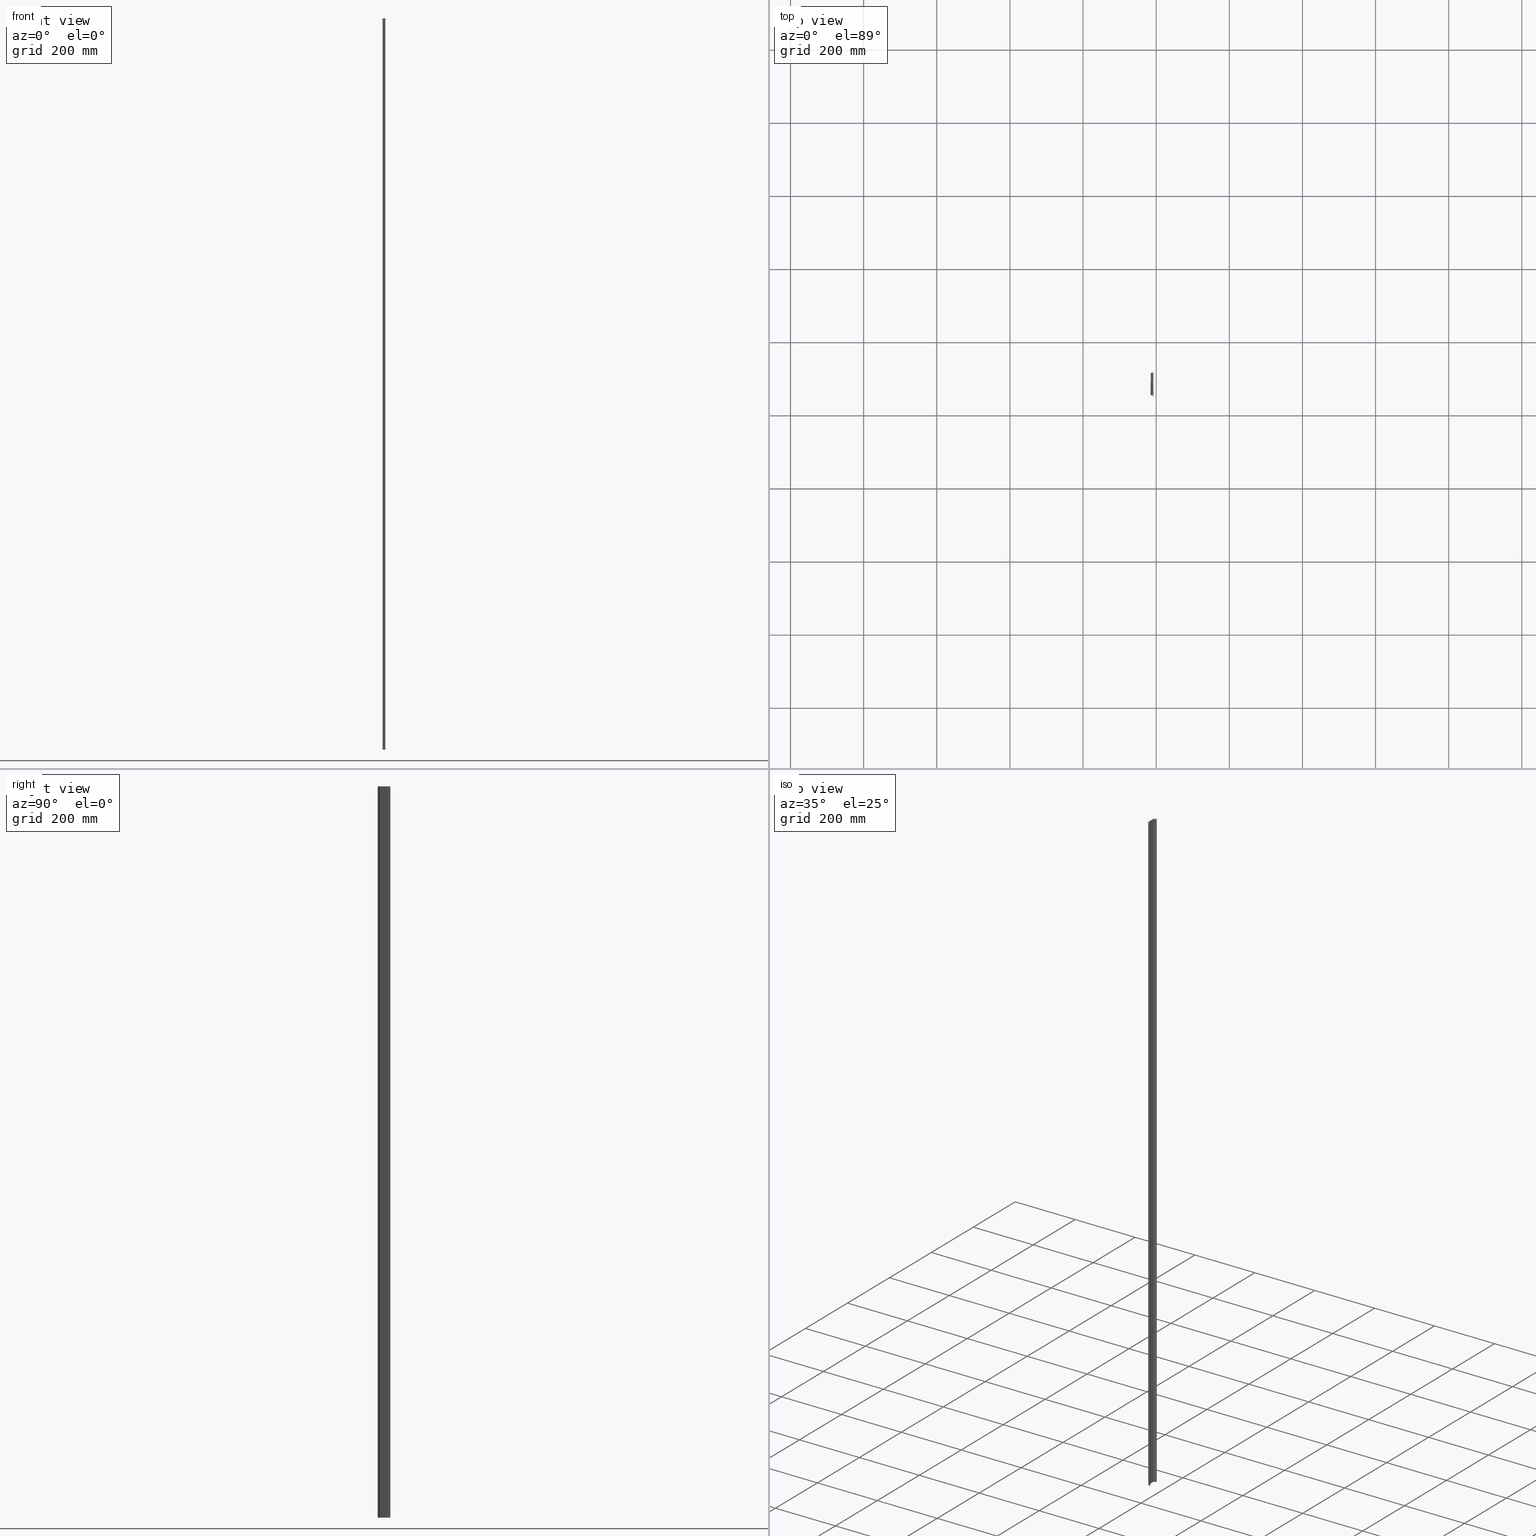
[diagram: canonical four-view strip — front | top / right | iso, engineering-drawing reading convention]
A machine part, canonical four-view strip (front | top / right | iso — engineering-drawing reading convention). The complete STEP part file that produces these views, byte-faithful:
ISO-10303-21;
HEADER;
FILE_DESCRIPTION (( 'STEP AP203' ),
    '1' );
FILE_NAME ('35x7,5 Galvaniz Kapl� D�z Montaj Raylar� - 2 m.STEP',
    '2019-01-03T08:49:48',
    ( '' ),
    ( '' ),
    'SwSTEP 2.0',
    'SolidWorks 2011',
    '' );
FILE_SCHEMA (( 'CONFIG_CONTROL_DESIGN' ));
ENDSEC;

DATA;
#1 = PLANE ( 'NONE',  #370 ) ;
#2 = CARTESIAN_POINT ( 'NONE',  ( 1388.575919215657900, 481.7188036583252700, 0.0000000000000000000 ) ) ;
#3 = DIRECTION ( 'NONE',  ( -0.0000000000000000000, 0.0000000000000000000, 1.000000000000000000 ) ) ;
#4 = DIRECTION ( 'NONE',  ( -0.0000000000000000000, 0.0000000000000000000, 1.000000000000000000 ) ) ;
#5 = CARTESIAN_POINT ( 'NONE',  ( 1388.575919215657900, 441.1357542965276400, 2000.000000000000000 ) ) ;
#6 = DIRECTION ( 'NONE',  ( -0.0000000000000000000, 0.0000000000000000000, 1.000000000000000000 ) ) ;
#7 = PLANE ( 'NONE',  #363 ) ;
#8 = DIRECTION ( 'NONE',  ( 1.000000000000000000, 0.0000000000000000000, 0.0000000000000000000 ) ) ;
#9 = DIRECTION ( 'NONE',  ( -0.0000000000000000000, 0.0000000000000000000, -1.000000000000000000 ) ) ;
#10 = DIRECTION ( 'NONE',  ( 0.0000000000000000000, 0.0000000000000000000, 1.000000000000000000 ) ) ;
#11 = DIRECTION ( 'NONE',  ( 1.000000000000000000, 0.0000000000000000000, 0.0000000000000000000 ) ) ;
#12 = FACE_OUTER_BOUND ( 'NONE', #203, .T. ) ;
#13 = CARTESIAN_POINT ( 'NONE',  ( 1386.625919215658100, 480.9188036583253200, 2000.000000000000000 ) ) ;
#14 = DIRECTION ( 'NONE',  ( 1.000000000000000000, 0.0000000000000000000, 0.0000000000000000000 ) ) ;
#15 = DIRECTION ( 'NONE',  ( -0.0000000000000000000, 0.0000000000000000000, -1.000000000000000000 ) ) ;
#16 = LINE ( 'NONE', #37, #276 ) ;
#17 = CARTESIAN_POINT ( 'NONE',  ( 1388.575919215659000, 482.7188036583252700, 2000.000000000000000 ) ) ;
#18 = CARTESIAN_POINT ( 'NONE',  ( 1388.575919215657900, 481.7188036583252700, 2000.000000000000000 ) ) ;
#19 = DIRECTION ( 'NONE',  ( 0.0000000000000000000, -1.000000000000000000, 0.0000000000000000000 ) ) ;
#20 = DIRECTION ( 'NONE',  ( -0.0000000000000000000, 0.0000000000000000000, 1.000000000000000000 ) ) ;
#21 = DIRECTION ( 'NONE',  ( 0.0000000000000000000, -0.0000000000000000000, -1.000000000000000000 ) ) ;
#22 = FACE_OUTER_BOUND ( 'NONE', #207, .T. ) ;
#23 = FACE_OUTER_BOUND ( 'NONE', #188, .T. ) ;
#24 = FACE_OUTER_BOUND ( 'NONE', #194, .T. ) ;
#25 = DIRECTION ( 'NONE',  ( -2.467162276944699000E-014, -1.000000000000000000, 0.0000000000000000000 ) ) ;
#26 = DIRECTION ( 'NONE',  ( -0.0000000000000000000, 0.0000000000000000000, 1.000000000000000000 ) ) ;
#27 = DIRECTION ( 'NONE',  ( -0.0000000000000000000, -0.0000000000000000000, -1.000000000000000000 ) ) ;
#28 = DIRECTION ( 'NONE',  ( 0.0000000000000000000, 0.0000000000000000000, 1.000000000000000000 ) ) ;
#29 = PLANE ( 'NONE',  #272 ) ;
#30 = CARTESIAN_POINT ( 'NONE',  ( 1388.575919215657900, 451.6188036583252500, 2000.000000000000000 ) ) ;
#31 = LINE ( 'NONE', #32, #315 ) ;
#32 = CARTESIAN_POINT ( 'NONE',  ( 1391.325919215657900, 486.6188036583252500, 2000.000000000000000 ) ) ;
#33 = LINE ( 'NONE', #44, #303 ) ;
#34 = CARTESIAN_POINT ( 'NONE',  ( 1386.625919215657900, 457.3188036583253500, 2000.000000000000000 ) ) ;
#35 = DIRECTION ( 'NONE',  ( 1.000000000000000000, -2.467162276944699000E-014, 0.0000000000000000000 ) ) ;
#36 = DIRECTION ( 'NONE',  ( 0.0000000000000000000, -0.0000000000000000000, -1.000000000000000000 ) ) ;
#37 = CARTESIAN_POINT ( 'NONE',  ( 1391.325919215657900, 483.5188036583252300, 2000.000000000000000 ) ) ;
#38 = DIRECTION ( 'NONE',  ( 1.000000000000000000, 0.0000000000000000000, -0.0000000000000000000 ) ) ;
#39 = DIRECTION ( 'NONE',  ( 0.0000000000000000000, -1.000000000000000000, 0.0000000000000000000 ) ) ;
#40 = DIRECTION ( 'NONE',  ( 0.0000000000000000000, 0.0000000000000000000, 1.000000000000000000 ) ) ;
#41 = FACE_OUTER_BOUND ( 'NONE', #192, .T. ) ;
#42 = DIRECTION ( 'NONE',  ( 1.000000000000000000, 0.0000000000000000000, 0.0000000000000000000 ) ) ;
#43 = DIRECTION ( 'NONE',  ( 0.0000000000000000000, -1.000000000000000000, 0.0000000000000000000 ) ) ;
#44 = CARTESIAN_POINT ( 'NONE',  ( 1388.575919215657900, 486.6188036583252500, 2000.000000000000000 ) ) ;
#45 = CARTESIAN_POINT ( 'NONE',  ( 1386.625919215657900, 481.7188036583252700, 0.0000000000000000000 ) ) ;
#46 = FACE_OUTER_BOUND ( 'NONE', #193, .T. ) ;
#47 = PLANE ( 'NONE',  #287 ) ;
#48 = CARTESIAN_POINT ( 'NONE',  ( 1390.525919215657700, 454.7188036583252700, 2000.000000000000000 ) ) ;
#49 = CARTESIAN_POINT ( 'NONE',  ( 1391.325919215657900, 441.1357542965276400, 2000.000000000000000 ) ) ;
#50 = PLANE ( 'NONE',  #311 ) ;
#51 = PLANE ( 'NONE',  #314 ) ;
#52 = DIRECTION ( 'NONE',  ( -0.0000000000000000000, 0.0000000000000000000, -1.000000000000000000 ) ) ;
#53 = CARTESIAN_POINT ( 'NONE',  ( 1385.825919215657900, 441.1357542965276400, 2000.000000000000000 ) ) ;
#54 = CARTESIAN_POINT ( 'NONE',  ( 1391.325919215657900, 441.1357542965276400, 0.0000000000000000000 ) ) ;
#55 = DIRECTION ( 'NONE',  ( 1.000000000000000000, 0.0000000000000000000, 0.0000000000000000000 ) ) ;
#56 = LINE ( 'NONE', #54, #283 ) ;
#57 = DIRECTION ( 'NONE',  ( 1.000000000000000000, 0.0000000000000000000, -0.0000000000000000000 ) ) ;
#58 = LINE ( 'NONE', #45, #312 ) ;
#59 = DIRECTION ( 'NONE',  ( -0.0000000000000000000, -0.0000000000000000000, -1.000000000000000000 ) ) ;
#60 = CYLINDRICAL_SURFACE ( 'NONE', #319, 0.7999999999999118900 ) ;
#61 = DIRECTION ( 'NONE',  ( 0.0000000000000000000, -0.0000000000000000000, -1.000000000000000000 ) ) ;
#62 = DIRECTION ( 'NONE',  ( 1.000000000000000000, 0.0000000000000000000, 0.0000000000000000000 ) ) ;
#63 = LINE ( 'NONE', #82, #313 ) ;
#64 = LINE ( 'NONE', #84, #316 ) ;
#65 = DIRECTION ( 'NONE',  ( 0.0000000000000000000, 0.0000000000000000000, 1.000000000000000000 ) ) ;
#66 = LINE ( 'NONE', #80, #293 ) ;
#67 = DIRECTION ( 'NONE',  ( -1.000000000000000000, 0.0000000000000000000, 0.0000000000000000000 ) ) ;
#68 = DIRECTION ( 'NONE',  ( -0.0000000000000000000, -0.0000000000000000000, 1.000000000000000000 ) ) ;
#69 = CYLINDRICAL_SURFACE ( 'NONE', #285, 0.7999999999999118900 ) ;
#70 = CARTESIAN_POINT ( 'NONE',  ( 1390.525919215658000, 483.5188036583252300, 2000.000000000000000 ) ) ;
#71 = DIRECTION ( 'NONE',  ( -1.000000000000000000, 0.0000000000000000000, 0.0000000000000000000 ) ) ;
#72 = LINE ( 'NONE', #516, #295 ) ;
#73 = DIRECTION ( 'NONE',  ( 0.0000000000000000000, -1.000000000000000000, 0.0000000000000000000 ) ) ;
#74 = LINE ( 'NONE', #76, #279 ) ;
#75 = LINE ( 'NONE', #83, #298 ) ;
#76 = CARTESIAN_POINT ( 'NONE',  ( 1392.325919215657900, 451.6188036583252500, 2000.000000000000000 ) ) ;
#77 = LINE ( 'NONE', #506, #306 ) ;
#78 = DIRECTION ( 'NONE',  ( 1.000000000000000000, 0.0000000000000000000, 0.0000000000000000000 ) ) ;
#79 = FACE_OUTER_BOUND ( 'NONE', #205, .T. ) ;
#80 = CARTESIAN_POINT ( 'NONE',  ( 1384.825919215657900, 441.1357542965276400, 2000.000000000000000 ) ) ;
#81 = DIRECTION ( 'NONE',  ( -0.0000000000000000000, -0.0000000000000000000, -1.000000000000000000 ) ) ;
#82 = CARTESIAN_POINT ( 'NONE',  ( 1392.325919215657900, 441.1357542965276400, 0.0000000000000000000 ) ) ;
#83 = CARTESIAN_POINT ( 'NONE',  ( 1386.625919215657900, 456.5188036583253400, 2000.000000000000000 ) ) ;
#84 = CARTESIAN_POINT ( 'NONE',  ( 1392.325919215657900, 454.7188036583252700, 2000.000000000000000 ) ) ;
#85 = CARTESIAN_POINT ( 'NONE',  ( 1390.525919215658000, 454.7188036583252100, 2000.000000000000000 ) ) ;
#86 = LINE ( 'NONE', #91, #292 ) ;
#87 = DIRECTION ( 'NONE',  ( 0.0000000000000000000, -1.000000000000000000, 0.0000000000000000000 ) ) ;
#88 = LINE ( 'NONE', #89, #294 ) ;
#89 = CARTESIAN_POINT ( 'NONE',  ( 1388.575919215657900, 486.6188036583252500, 0.0000000000000000000 ) ) ;
#90 = DIRECTION ( 'NONE',  ( 0.0000000000000000000, 0.0000000000000000000, 1.000000000000000000 ) ) ;
#91 = CARTESIAN_POINT ( 'NONE',  ( 1384.825919215657900, 441.1357542965276400, 0.0000000000000000000 ) ) ;
#92 = DESIGN_CONTEXT ( 'detailed design', #388, 'design' ) ;
#93 = UNCERTAINTY_MEASURE_WITH_UNIT (LENGTH_MEASURE( 1.000000000000000100E-005 ), #528, 'distance_accuracy_value', 'NONE');
#94 = MANIFOLD_SOLID_BREP ( 'Radyus4', #332 ) ;
#95 = PRODUCT_DEFINITION_SHAPE ( 'NONE', 'NONE',  #449 ) ;
#96 = ORIENTED_EDGE ( 'NONE', *, *, #414, .F. ) ;
#97 = ORIENTED_EDGE ( 'NONE', *, *, #420, .T. ) ;
#98 = ORIENTED_EDGE ( 'NONE', *, *, #477, .F. ) ;
#99 = ORIENTED_EDGE ( 'NONE', *, *, #407, .T. ) ;
#100 = ORIENTED_EDGE ( 'NONE', *, *, #417, .F. ) ;
#101 = ORIENTED_EDGE ( 'NONE', *, *, #405, .F. ) ;
#102 = ORIENTED_EDGE ( 'NONE', *, *, #406, .F. ) ;
#103 = ORIENTED_EDGE ( 'NONE', *, *, #421, .F. ) ;
#104 = ORIENTED_EDGE ( 'NONE', *, *, #437, .F. ) ;
#105 = ORIENTED_EDGE ( 'NONE', *, *, #412, .T. ) ;
#106 = ORIENTED_EDGE ( 'NONE', *, *, #414, .T. ) ;
#107 = ORIENTED_EDGE ( 'NONE', *, *, #475, .F. ) ;
#108 = ORIENTED_EDGE ( 'NONE', *, *, #462, .F. ) ;
#109 = ORIENTED_EDGE ( 'NONE', *, *, #458, .T. ) ;
#110 = ORIENTED_EDGE ( 'NONE', *, *, #419, .T. ) ;
#111 = ORIENTED_EDGE ( 'NONE', *, *, #440, .T. ) ;
#112 = ORIENTED_EDGE ( 'NONE', *, *, #407, .F. ) ;
#113 = ORIENTED_EDGE ( 'NONE', *, *, #397, .T. ) ;
#114 = ORIENTED_EDGE ( 'NONE', *, *, #399, .T. ) ;
#115 = ORIENTED_EDGE ( 'NONE', *, *, #433, .F. ) ;
#116 = ORIENTED_EDGE ( 'NONE', *, *, #438, .T. ) ;
#117 = ORIENTED_EDGE ( 'NONE', *, *, #482, .F. ) ;
#118 = ORIENTED_EDGE ( 'NONE', *, *, #396, .F. ) ;
#119 = ORIENTED_EDGE ( 'NONE', *, *, #412, .F. ) ;
#120 = ORIENTED_EDGE ( 'NONE', *, *, #408, .T. ) ;
#121 = ORIENTED_EDGE ( 'NONE', *, *, #438, .F. ) ;
#122 = ORIENTED_EDGE ( 'NONE', *, *, #401, .F. ) ;
#123 = ORIENTED_EDGE ( 'NONE', *, *, #404, .T. ) ;
#124 = ORIENTED_EDGE ( 'NONE', *, *, #476, .F. ) ;
#125 = ORIENTED_EDGE ( 'NONE', *, *, #485, .F. ) ;
#126 = ORIENTED_EDGE ( 'NONE', *, *, #468, .F. ) ;
#127 = ORIENTED_EDGE ( 'NONE', *, *, #469, .T. ) ;
#128 = ORIENTED_EDGE ( 'NONE', *, *, #471, .T. ) ;
#129 = ORIENTED_EDGE ( 'NONE', *, *, #443, .T. ) ;
#130 = ORIENTED_EDGE ( 'NONE', *, *, #437, .T. ) ;
#131 = ORIENTED_EDGE ( 'NONE', *, *, #415, .T. ) ;
#132 = ORIENTED_EDGE ( 'NONE', *, *, #442, .F. ) ;
#133 = ORIENTED_EDGE ( 'NONE', *, *, #479, .F. ) ;
#134 = VERTEX_POINT ( 'NONE', #630 ) ;
#135 = VERTEX_POINT ( 'NONE', #624 ) ;
#136 = ORIENTED_EDGE ( 'NONE', *, *, #398, .F. ) ;
#137 = VERTEX_POINT ( 'NONE', #616 ) ;
#138 = VERTEX_POINT ( 'NONE', #610 ) ;
#139 = VERTEX_POINT ( 'NONE', #626 ) ;
#140 = VERTEX_POINT ( 'NONE', #627 ) ;
#141 = VERTEX_POINT ( 'NONE', #636 ) ;
#142 = VERTEX_POINT ( 'NONE', #635 ) ;
#143 = VERTEX_POINT ( 'NONE', #611 ) ;
#144 = VERTEX_POINT ( 'NONE', #628 ) ;
#145 = VERTEX_POINT ( 'NONE', #612 ) ;
#146 = VERTEX_POINT ( 'NONE', #629 ) ;
#147 = VERTEX_POINT ( 'NONE', #631 ) ;
#148 = VERTEX_POINT ( 'NONE', #634 ) ;
#149 = VERTEX_POINT ( 'NONE', #618 ) ;
#150 = ORIENTED_EDGE ( 'NONE', *, *, #408, .F. ) ;
#151 = ORIENTED_EDGE ( 'NONE', *, *, #474, .F. ) ;
#152 = VERTEX_POINT ( 'NONE', #619 ) ;
#153 = ORIENTED_EDGE ( 'NONE', *, *, #463, .T. ) ;
#154 = VERTEX_POINT ( 'NONE', #613 ) ;
#155 = VERTEX_POINT ( 'NONE', #614 ) ;
#156 = ORIENTED_EDGE ( 'NONE', *, *, #413, .F. ) ;
#157 = VERTEX_POINT ( 'NONE', #608 ) ;
#158 = VERTEX_POINT ( 'NONE', #617 ) ;
#159 = ORIENTED_EDGE ( 'NONE', *, *, #483, .F. ) ;
#160 = ORIENTED_EDGE ( 'NONE', *, *, #392, .F. ) ;
#161 = VERTEX_POINT ( 'NONE', #637 ) ;
#162 = ORIENTED_EDGE ( 'NONE', *, *, #397, .F. ) ;
#163 = VERTEX_POINT ( 'NONE', #615 ) ;
#164 = ORIENTED_EDGE ( 'NONE', *, *, #417, .T. ) ;
#165 = ORIENTED_EDGE ( 'NONE', *, *, #467, .F. ) ;
#166 = VERTEX_POINT ( 'NONE', #609 ) ;
#167 = VERTEX_POINT ( 'NONE', #680 ) ;
#168 = VERTEX_POINT ( 'NONE', #650 ) ;
#169 = VERTEX_POINT ( 'NONE', #669 ) ;
#170 = VERTEX_POINT ( 'NONE', #658 ) ;
#171 = VERTEX_POINT ( 'NONE', #670 ) ;
#172 = ORIENTED_EDGE ( 'NONE', *, *, #480, .F. ) ;
#173 = ORIENTED_EDGE ( 'NONE', *, *, #421, .T. ) ;
#174 = ORIENTED_EDGE ( 'NONE', *, *, #442, .T. ) ;
#175 = VERTEX_POINT ( 'NONE', #642 ) ;
#176 = VERTEX_POINT ( 'NONE', #659 ) ;
#177 = VERTEX_POINT ( 'NONE', #668 ) ;
#178 = VERTEX_POINT ( 'NONE', #652 ) ;
#179 = VERTEX_POINT ( 'NONE', #647 ) ;
#180 = ORIENTED_EDGE ( 'NONE', *, *, #415, .F. ) ;
#181 = ORIENTED_EDGE ( 'NONE', *, *, #411, .F. ) ;
#182 = ORIENTED_EDGE ( 'NONE', *, *, #466, .T. ) ;
#183 = ORIENTED_EDGE ( 'NONE', *, *, #432, .F. ) ;
#184 = ORIENTED_EDGE ( 'NONE', *, *, #427, .F. ) ;
#185 = ORIENTED_EDGE ( 'NONE', *, *, #470, .F. ) ;
#186 = EDGE_LOOP ( 'NONE', ( #150, #159, #132, #183 ) ) ;
#187 = EDGE_LOOP ( 'NONE', ( #248, #218, #210, #211 ) ) ;
#188 = EDGE_LOOP ( 'NONE', ( #231, #251, #228, #111 ) ) ;
#189 = EDGE_LOOP ( 'NONE', ( #242, #227, #234, #226 ) ) ;
#190 = EDGE_LOOP ( 'NONE', ( #216, #233, #241, #236 ) ) ;
#191 = EDGE_LOOP ( 'NONE', ( #100, #125, #112, #107 ) ) ;
#192 = EDGE_LOOP ( 'NONE', ( #239, #212, #217, #246 ) ) ;
#193 = EDGE_LOOP ( 'NONE', ( #213, #208, #215, #214 ) ) ;
#194 = EDGE_LOOP ( 'NONE', ( #225, #219, #247, #209 ) ) ;
#195 = EDGE_LOOP ( 'NONE', ( #103, #269, #119, #102 ) ) ;
#196 = EDGE_LOOP ( 'NONE', ( #121, #108, #96, #98 ) ) ;
#197 = EDGE_LOOP ( 'NONE', ( #245, #256, #240, #229 ) ) ;
#198 = EDGE_LOOP ( 'NONE', ( #244, #232, #249, #255 ) ) ;
#199 = EDGE_LOOP ( 'NONE', ( #238, #230, #224, #221 ) ) ;
#200 = EDGE_LOOP ( 'NONE', ( #180, #160, #136, #184 ) ) ;
#201 = EDGE_LOOP ( 'NONE', ( #262, #106, #109, #264, #259, #113, #182, #99, #257, #123, #172, #120, #115, #220, #114, #266, #97, #173, #265, #110 ) ) ;
#202 = EDGE_LOOP ( 'NONE', ( #252, #222, #254, #237 ) ) ;
#203 = EDGE_LOOP ( 'NONE', ( #260, #267, #118, #263 ) ) ;
#204 = EDGE_LOOP ( 'NONE', ( #104, #181, #261, #124 ) ) ;
#205 = EDGE_LOOP ( 'NONE', ( #162, #165, #156, #133 ) ) ;
#206 = EDGE_LOOP ( 'NONE', ( #151, #116, #128, #258, #185, #105, #122, #131, #101, #129, #270, #174, #127, #130, #153, #164, #126, #223, #268, #117 ) ) ;
#207 = EDGE_LOOP ( 'NONE', ( #243, #250, #253, #235 ) ) ;
#208 = ORIENTED_EDGE ( 'NONE', *, *, #483, .T. ) ;
#209 = ORIENTED_EDGE ( 'NONE', *, *, #434, .T. ) ;
#210 = ORIENTED_EDGE ( 'NONE', *, *, #399, .F. ) ;
#211 = ORIENTED_EDGE ( 'NONE', *, *, #428, .F. ) ;
#212 = ORIENTED_EDGE ( 'NONE', *, *, #472, .T. ) ;
#213 = ORIENTED_EDGE ( 'NONE', *, *, #469, .F. ) ;
#214 = ORIENTED_EDGE ( 'NONE', *, *, #411, .T. ) ;
#215 = ORIENTED_EDGE ( 'NONE', *, *, #480, .T. ) ;
#216 = ORIENTED_EDGE ( 'NONE', *, *, #463, .F. ) ;
#217 = ORIENTED_EDGE ( 'NONE', *, *, #473, .F. ) ;
#218 = ORIENTED_EDGE ( 'NONE', *, *, #427, .T. ) ;
#219 = ORIENTED_EDGE ( 'NONE', *, *, #392, .T. ) ;
#220 = ORIENTED_EDGE ( 'NONE', *, *, #445, .F. ) ;
#221 = ORIENTED_EDGE ( 'NONE', *, *, #461, .T. ) ;
#222 = ORIENTED_EDGE ( 'NONE', *, *, #479, .T. ) ;
#223 = ORIENTED_EDGE ( 'NONE', *, *, #413, .T. ) ;
#224 = ORIENTED_EDGE ( 'NONE', *, *, #474, .T. ) ;
#225 = ORIENTED_EDGE ( 'NONE', *, *, #420, .F. ) ;
#226 = ORIENTED_EDGE ( 'NONE', *, *, #428, .T. ) ;
#227 = ORIENTED_EDGE ( 'NONE', *, *, #440, .F. ) ;
#228 = ORIENTED_EDGE ( 'NONE', *, *, #425, .F. ) ;
#229 = ORIENTED_EDGE ( 'NONE', *, *, #459, .T. ) ;
#230 = ORIENTED_EDGE ( 'NONE', *, *, #462, .T. ) ;
#231 = ORIENTED_EDGE ( 'NONE', *, *, #433, .T. ) ;
#232 = ORIENTED_EDGE ( 'NONE', *, *, #467, .T. ) ;
#233 = ORIENTED_EDGE ( 'NONE', *, *, #476, .T. ) ;
#234 = ORIENTED_EDGE ( 'NONE', *, *, #443, .F. ) ;
#235 = ORIENTED_EDGE ( 'NONE', *, *, #465, .T. ) ;
#236 = ORIENTED_EDGE ( 'NONE', *, *, #485, .T. ) ;
#237 = ORIENTED_EDGE ( 'NONE', *, *, #475, .T. ) ;
#238 = ORIENTED_EDGE ( 'NONE', *, *, #458, .F. ) ;
#239 = ORIENTED_EDGE ( 'NONE', *, *, #470, .T. ) ;
#240 = ORIENTED_EDGE ( 'NONE', *, *, #484, .T. ) ;
#241 = ORIENTED_EDGE ( 'NONE', *, *, #460, .T. ) ;
#242 = ORIENTED_EDGE ( 'NONE', *, *, #445, .T. ) ;
#243 = ORIENTED_EDGE ( 'NONE', *, *, #478, .F. ) ;
#244 = ORIENTED_EDGE ( 'NONE', *, *, #481, .F. ) ;
#245 = ORIENTED_EDGE ( 'NONE', *, *, #471, .F. ) ;
#246 = ORIENTED_EDGE ( 'NONE', *, *, #406, .T. ) ;
#247 = ORIENTED_EDGE ( 'NONE', *, *, #401, .T. ) ;
#248 = ORIENTED_EDGE ( 'NONE', *, *, #405, .T. ) ;
#249 = ORIENTED_EDGE ( 'NONE', *, *, #464, .T. ) ;
#250 = ORIENTED_EDGE ( 'NONE', *, *, #461, .F. ) ;
#251 = ORIENTED_EDGE ( 'NONE', *, *, #432, .T. ) ;
#252 = ORIENTED_EDGE ( 'NONE', *, *, #466, .F. ) ;
#253 = ORIENTED_EDGE ( 'NONE', *, *, #482, .T. ) ;
#254 = ORIENTED_EDGE ( 'NONE', *, *, #468, .T. ) ;
#255 = ORIENTED_EDGE ( 'NONE', *, *, #465, .F. ) ;
#256 = ORIENTED_EDGE ( 'NONE', *, *, #477, .T. ) ;
#257 = ORIENTED_EDGE ( 'NONE', *, *, #460, .F. ) ;
#258 = ORIENTED_EDGE ( 'NONE', *, *, #396, .T. ) ;
#259 = ORIENTED_EDGE ( 'NONE', *, *, #464, .F. ) ;
#260 = ORIENTED_EDGE ( 'NONE', *, *, #419, .F. ) ;
#261 = ORIENTED_EDGE ( 'NONE', *, *, #404, .F. ) ;
#262 = ORIENTED_EDGE ( 'NONE', *, *, #484, .F. ) ;
#263 = ORIENTED_EDGE ( 'NONE', *, *, #459, .F. ) ;
#264 = ORIENTED_EDGE ( 'NONE', *, *, #478, .T. ) ;
#265 = ORIENTED_EDGE ( 'NONE', *, *, #473, .T. ) ;
#266 = ORIENTED_EDGE ( 'NONE', *, *, #398, .T. ) ;
#267 = ORIENTED_EDGE ( 'NONE', *, *, #472, .F. ) ;
#268 = ORIENTED_EDGE ( 'NONE', *, *, #481, .T. ) ;
#269 = ORIENTED_EDGE ( 'NONE', *, *, #434, .F. ) ;
#270 = ORIENTED_EDGE ( 'NONE', *, *, #425, .T. ) ;
#271 = VECTOR ( 'NONE', #517, 1000.000000000000000 ) ;
#272 = AXIS2_PLACEMENT_3D ( 'NONE', #17, #25, #35 ) ;
#273 = VECTOR ( 'NONE', #524, 1000.000000000000000 ) ;
#274 = VECTOR ( 'NONE', #567, 1000.000000000000000 ) ;
#275 = VECTOR ( 'NONE', #535, 1000.000000000000000 ) ;
#276 = VECTOR ( 'NONE', #28, 1000.000000000000000 ) ;
#277 = AXIS2_PLACEMENT_3D ( 'NONE', #13, #26, #42 ) ;
#278 = VECTOR ( 'NONE', #505, 1000.000000000000000 ) ;
#279 = VECTOR ( 'NONE', #81, 1000.000000000000000 ) ;
#280 = VECTOR ( 'NONE', #511, 1000.000000000000000 ) ;
#281 = AXIS2_PLACEMENT_3D ( 'NONE', #770, #773, #744 ) ;
#282 = VECTOR ( 'NONE', #774, 1000.000000000000000 ) ;
#283 = VECTOR ( 'NONE', #39, 1000.000000000000000 ) ;
#284 = VECTOR ( 'NONE', #564, 1000.000000000000000 ) ;
#285 = AXIS2_PLACEMENT_3D ( 'NONE', #85, #65, #62 ) ;
#286 = VECTOR ( 'NONE', #559, 1000.000000000000000 ) ;
#287 = AXIS2_PLACEMENT_3D ( 'NONE', #49, #38, #15 ) ;
#288 = VECTOR ( 'NONE', #550, 1000.000000000000000 ) ;
#289 = CIRCLE ( 'NONE', #310, 1.800000000000023800 ) ;
#290 = VECTOR ( 'NONE', #493, 1000.000000000000000 ) ;
#291 = VECTOR ( 'NONE', #520, 1000.000000000000000 ) ;
#292 = VECTOR ( 'NONE', #87, 1000.000000000000000 ) ;
#293 = VECTOR ( 'NONE', #503, 1000.000000000000000 ) ;
#294 = VECTOR ( 'NONE', #67, 1000.000000000000000 ) ;
#295 = VECTOR ( 'NONE', #521, 1000.000000000000000 ) ;
#296 = VECTOR ( 'NONE', #497, 1000.000000000000000 ) ;
#297 = VECTOR ( 'NONE', #537, 1000.000000000000000 ) ;
#298 = VECTOR ( 'NONE', #90, 1000.000000000000000 ) ;
#299 = VECTOR ( 'NONE', #488, 1000.000000000000000 ) ;
#300 = VECTOR ( 'NONE', #495, 1000.000000000000000 ) ;
#301 = AXIS2_PLACEMENT_3D ( 'NONE', #558, #530, #531 ) ;
#302 = AXIS2_PLACEMENT_3D ( 'NONE', #780, #776, #779 ) ;
#303 = VECTOR ( 'NONE', #71, 1000.000000000000000 ) ;
#304 = VECTOR ( 'NONE', #751, 1000.000000000000000 ) ;
#305 = AXIS2_PLACEMENT_3D ( 'NONE', #70, #61, #78 ) ;
#306 = VECTOR ( 'NONE', #502, 1000.000000000000000 ) ;
#307 = VECTOR ( 'NONE', #512, 1000.000000000000000 ) ;
#308 = VECTOR ( 'NONE', #509, 1000.000000000000000 ) ;
#309 = AXIS2_PLACEMENT_3D ( 'NONE', #771, #762, #11 ) ;
#310 = AXIS2_PLACEMENT_3D ( 'NONE', #48, #20, #55 ) ;
#311 = AXIS2_PLACEMENT_3D ( 'NONE', #18, #19, #36 ) ;
#312 = VECTOR ( 'NONE', #27, 1000.000000000000000 ) ;
#313 = VECTOR ( 'NONE', #73, 1000.000000000000000 ) ;
#314 = AXIS2_PLACEMENT_3D ( 'NONE', #30, #43, #21 ) ;
#315 = VECTOR ( 'NONE', #59, 1000.000000000000000 ) ;
#316 = VECTOR ( 'NONE', #68, 1000.000000000000000 ) ;
#317 = VECTOR ( 'NONE', #514, 1000.000000000000000 ) ;
#318 = VECTOR ( 'NONE', #570, 1000.000000000000000 ) ;
#319 = AXIS2_PLACEMENT_3D ( 'NONE', #34, #40, #14 ) ;
#320 = CIRCLE ( 'NONE', #305, 0.7999999999999118900 ) ;
#321 = AXIS2_PLACEMENT_3D ( 'NONE', #53, #57, #52 ) ;
#322 = VECTOR ( 'NONE', #548, 1000.000000000000000 ) ;
#323 = CIRCLE ( 'NONE', #277, 1.800000000000023800 ) ;
#324 = VECTOR ( 'NONE', #730, 1000.000000000000000 ) ;
#325 = CIRCLE ( 'NONE', #343, 0.7999999999999118900 ) ;
#326 = VECTOR ( 'NONE', #643, 1000.000000000000000 ) ;
#327 = CIRCLE ( 'NONE', #347, 1.800000000000023800 ) ;
#328 = AXIS2_PLACEMENT_3D ( 'NONE', #666, #681, #646 ) ;
#329 = CIRCLE ( 'NONE', #342, 1.800000000000023800 ) ;
#330 = VECTOR ( 'NONE', #699, 1000.000000000000000 ) ;
#331 = CIRCLE ( 'NONE', #348, 1.800000000000023800 ) ;
#332 = CLOSED_SHELL ( 'NONE', ( #435, #423, #426, #403, #439, #416, #429, #430, #431, #402, #400, #436, #422, #409, #441, #393, #395, #424, #418, #394, #444, #410 ) ) ;
#333 = VECTOR ( 'NONE', #714, 1000.000000000000000 ) ;
#334 = AXIS2_PLACEMENT_3D ( 'NONE', #638, #660, #679 ) ;
#335 = CIRCLE ( 'NONE', #340, 0.7999999999999118900 ) ;
#336 = AXIS2_PLACEMENT_3D ( 'NONE', #696, #689, #690 ) ;
#337 = AXIS2_PLACEMENT_3D ( 'NONE', #701, #721, #736 ) ;
#338 = VECTOR ( 'NONE', #655, 1000.000000000000000 ) ;
#339 = AXIS2_PLACEMENT_3D ( 'NONE', #667, #685, #676 ) ;
#340 = AXIS2_PLACEMENT_3D ( 'NONE', #662, #664, #648 ) ;
#341 = CIRCLE ( 'NONE', #344, 0.7999999999999118900 ) ;
#342 = AXIS2_PLACEMENT_3D ( 'NONE', #704, #719, #738 ) ;
#343 = AXIS2_PLACEMENT_3D ( 'NONE', #713, #720, #710 ) ;
#344 = AXIS2_PLACEMENT_3D ( 'NONE', #682, #672, #639 ) ;
#345 = AXIS2_PLACEMENT_3D ( 'NONE', #727, #743, #734 ) ;
#346 = CIRCLE ( 'NONE', #354, 1.800000000000023800 ) ;
#347 = AXIS2_PLACEMENT_3D ( 'NONE', #663, #641, #671 ) ;
#348 = AXIS2_PLACEMENT_3D ( 'NONE', #694, #695, #739 ) ;
#349 = CIRCLE ( 'NONE', #351, 0.7999999999999118900 ) ;
#350 = VECTOR ( 'NONE', #722, 1000.000000000000000 ) ;
#351 = AXIS2_PLACEMENT_3D ( 'NONE', #702, #723, #726 ) ;
#352 = AXIS2_PLACEMENT_3D ( 'NONE', #705, #728, #729 ) ;
#353 = AXIS2_PLACEMENT_3D ( 'NONE', #687, #692, #688 ) ;
#354 = AXIS2_PLACEMENT_3D ( 'NONE', #742, #732, #715 ) ;
#355 = AXIS2_PLACEMENT_3D ( 'NONE', #665, #683, #677 ) ;
#356 = CIRCLE ( 'NONE', #352, 0.7999999999999118900 ) ;
#357 = CIRCLE ( 'NONE', #366, 1.800000000000023800 ) ;
#358 = CIRCLE ( 'NONE', #362, 1.800000000000023800 ) ;
#359 = VECTOR ( 'NONE', #756, 1000.000000000000000 ) ;
#360 = AXIS2_PLACEMENT_3D ( 'NONE', #749, #3, #757 ) ;
#361 = VECTOR ( 'NONE', #768, 1000.000000000000000 ) ;
#362 = AXIS2_PLACEMENT_3D ( 'NONE', #748, #6, #752 ) ;
#363 = AXIS2_PLACEMENT_3D ( 'NONE', #746, #758, #9 ) ;
#364 = CIRCLE ( 'NONE', #367, 0.7999999999999118900 ) ;
#365 = AXIS2_PLACEMENT_3D ( 'NONE', #718, #10, #755 ) ;
#366 = AXIS2_PLACEMENT_3D ( 'NONE', #709, #716, #733 ) ;
#367 = AXIS2_PLACEMENT_3D ( 'NONE', #765, #4, #766 ) ;
#368 =( GEOMETRIC_REPRESENTATION_CONTEXT ( 3 ) GLOBAL_UNCERTAINTY_ASSIGNED_CONTEXT ( ( #93 ) ) GLOBAL_UNIT_ASSIGNED_CONTEXT ( ( #528, #565, #549 ) ) REPRESENTATION_CONTEXT ( 'NONE', 'WORKASPACE' ) );
#369 = CIRCLE ( 'NONE', #360, 0.7999999999999118900 ) ;
#370 = AXIS2_PLACEMENT_3D ( 'NONE', #5, #759, #8 ) ;
#371 = AXIS2_PLACEMENT_3D ( 'NONE', #703, #708, #712 ) ;
#372 = CC_DESIGN_APPROVAL ( #446, ( #449 ) ) ;
#373 = LOCAL_TIME ( 11, 49, 48.00000000000000000, #576 ) ;
#374 = SECURITY_CLASSIFICATION ( '', '', #595 ) ;
#375 = LOCAL_TIME ( 11, 49, 48.00000000000000000, #580 ) ;
#376 = CC_DESIGN_APPROVAL ( #452, ( #374 ) ) ;
#377 = LOCAL_TIME ( 11, 49, 48.00000000000000000, #543 ) ;
#378 = LOCAL_TIME ( 11, 49, 48.00000000000000000, #577 ) ;
#379 = PRODUCT_DEFINITION_FORMATION_WITH_SPECIFIED_SOURCE ( '     Herhangi', '', #387, .NOT_KNOWN. ) ;
#380 = CC_DESIGN_SECURITY_CLASSIFICATION ( #374, ( #379 ) ) ;
#381 = LOCAL_TIME ( 11, 49, 48.00000000000000000, #575 ) ;
#382 = ORGANIZATION ( 'BEL�RT�LMEM��', 'BEL�RT�LMEM��', '' ) ;
#383 = APPROVAL_PERSON_ORGANIZATION ( #584, #453, #598 ) ;
#384 = APPROVAL_PERSON_ORGANIZATION ( #539, #446, #542 ) ;
#385 = APPROVAL_PERSON_ORGANIZATION ( #606, #452, #593 ) ;
#386 = CC_DESIGN_APPROVAL ( #453, ( #379 ) ) ;
#387 = PRODUCT ( '35x7,5 Galvaniz Kapl� D�z Montaj Raylar� - 2 m', '35x7,5 Galvaniz Kapl� D�z Montaj Raylar� - 2 m', '', ( #553 ) ) ;
#388 = APPLICATION_CONTEXT ( 'configuration controlled 3d designs of mechanical parts and assemblies' ) ;
#389 = APPLICATION_CONTEXT ( 'configuration controlled 3d designs of mechanical parts and assemblies' ) ;
#390 = ADVANCED_BREP_SHAPE_REPRESENTATION ( '35x7,5 Galvaniz Kapl� D�z Montaj Raylar� - 2 m', ( #94, #301 ), #368 ) ;
#391 = PERSON ( 'BEL�RT�LMEM��', 'BEL�RT�LMEM��', 'BEL�RT�LMEM��', ('BEL�RT�LMEM��'), ('BEL�RT�LMEM��'), ('BEL�RT�LMEM��') ) ;
#392 = EDGE_CURVE ( 'NONE', #166, #171, #673, .T. ) ;
#393 = ADVANCED_FACE ( 'NONE', ( #657 ), #649, .F. ) ;
#394 = ADVANCED_FACE ( 'NONE', ( #644 ), #684, .T. ) ;
#395 = ADVANCED_FACE ( 'NONE', ( #678 ), #651, .T. ) ;
#396 = EDGE_CURVE ( 'NONE', #152, #143, #335, .T. ) ;
#397 = EDGE_CURVE ( 'NONE', #149, #170, #341, .T. ) ;
#398 = EDGE_CURVE ( 'NONE', #633, #166, #327, .T. ) ;
#399 = EDGE_CURVE ( 'NONE', #178, #633, #661, .T. ) ;
#400 = ADVANCED_FACE ( 'NONE', ( #640 ), #645, .F. ) ;
#401 = EDGE_CURVE ( 'NONE', #171, #158, #656, .T. ) ;
#402 = ADVANCED_FACE ( 'NONE', ( #653 ), #697, .T. ) ;
#403 = ADVANCED_FACE ( 'NONE', ( #698 ), #674, .F. ) ;
#404 = EDGE_CURVE ( 'NONE', #179, #147, #331, .T. ) ;
#405 = EDGE_CURVE ( 'NONE', #620, #622, #691, .T. ) ;
#406 = EDGE_CURVE ( 'NONE', #144, #163, #700, .T. ) ;
#407 = EDGE_CURVE ( 'NONE', #177, #145, #329, .T. ) ;
#408 = EDGE_CURVE ( 'NONE', #157, #623, #325, .T. ) ;
#409 = ADVANCED_FACE ( 'NONE', ( #740 ), #741, .F. ) ;
#410 = ADVANCED_FACE ( 'NONE', ( #735 ), #711, .F. ) ;
#411 = EDGE_CURVE ( 'NONE', #147, #167, #731, .T. ) ;
#412 = EDGE_CURVE ( 'NONE', #163, #158, #349, .T. ) ;
#413 = EDGE_CURVE ( 'NONE', #168, #169, #356, .T. ) ;
#414 = EDGE_CURVE ( 'NONE', #175, #138, #346, .T. ) ;
#415 = EDGE_CURVE ( 'NONE', #171, #622, #357, .T. ) ;
#416 = ADVANCED_FACE ( 'NONE', ( #707 ), #737, .T. ) ;
#417 = EDGE_CURVE ( 'NONE', #141, #139, #358, .T. ) ;
#418 = ADVANCED_FACE ( 'NONE', ( #717 ), #706, .T. ) ;
#419 = EDGE_CURVE ( 'NONE', #135, #137, #369, .T. ) ;
#420 = EDGE_CURVE ( 'NONE', #166, #625, #781, .T. ) ;
#421 = EDGE_CURVE ( 'NONE', #625, #144, #364, .T. ) ;
#422 = ADVANCED_FACE ( 'NONE', ( #763 ), #1, .T. ) ;
#423 = ADVANCED_FACE ( 'NONE', ( #760 ), #7, .F. ) ;
#424 = ADVANCED_FACE ( 'NONE', ( #761 ), #753, .T. ) ;
#425 = EDGE_CURVE ( 'NONE', #154, #632, #747, .T. ) ;
#426 = ADVANCED_FACE ( 'NONE', ( #778 ), #769, .T. ) ;
#427 = EDGE_CURVE ( 'NONE', #622, #633, #750, .T. ) ;
#428 = EDGE_CURVE ( 'NONE', #620, #178, #745, .T. ) ;
#429 = ADVANCED_FACE ( 'NONE', ( #775 ), #764, .F. ) ;
#430 = ADVANCED_FACE ( 'NONE', ( #41 ), #754, .T. ) ;
#431 = ADVANCED_FACE ( 'NONE', ( #24 ), #50, .T. ) ;
#432 = EDGE_CURVE ( 'NONE', #623, #632, #16, .T. ) ;
#433 = EDGE_CURVE ( 'NONE', #621, #623, #56, .T. ) ;
#434 = EDGE_CURVE ( 'NONE', #158, #625, #58, .T. ) ;
#435 = ADVANCED_FACE ( 'NONE', ( #46 ), #29, .F. ) ;
#436 = ADVANCED_FACE ( 'NONE', ( #23 ), #47, .F. ) ;
#437 = EDGE_CURVE ( 'NONE', #167, #148, #323, .T. ) ;
#438 = EDGE_CURVE ( 'NONE', #140, #142, #289, .T. ) ;
#439 = ADVANCED_FACE ( 'NONE', ( #22 ), #51, .T. ) ;
#440 = EDGE_CURVE ( 'NONE', #154, #621, #31, .T. ) ;
#441 = ADVANCED_FACE ( 'NONE', ( #12 ), #60, .F. ) ;
#442 = EDGE_CURVE ( 'NONE', #632, #146, #320, .T. ) ;
#443 = EDGE_CURVE ( 'NONE', #620, #154, #33, .T. ) ;
#444 = ADVANCED_FACE ( 'NONE', ( #79 ), #69, .F. ) ;
#445 = EDGE_CURVE ( 'NONE', #178, #621, #88, .T. ) ;
#446 = APPROVAL ( #540, 'BEL�RT�LMEM��' ) ;
#447 = CC_DESIGN_PERSON_AND_ORGANIZATION_ASSIGNMENT ( #579, #588, ( #379 ) ) ;
#448 = CC_DESIGN_PERSON_AND_ORGANIZATION_ASSIGNMENT ( #589, #582, ( #449 ) ) ;
#449 = PRODUCT_DEFINITION ( 'Bilinmeyen', '', #379, #92 ) ;
#450 = CC_DESIGN_PERSON_AND_ORGANIZATION_ASSIGNMENT ( #536, #538, ( #387 ) ) ;
#451 = CC_DESIGN_PERSON_AND_ORGANIZATION_ASSIGNMENT ( #594, #583, ( #374 ) ) ;
#452 = APPROVAL ( #581, 'BEL�RT�LMEM��' ) ;
#453 = APPROVAL ( #605, 'BEL�RT�LMEM��' ) ;
#454 = PRODUCT_RELATED_PRODUCT_CATEGORY ( 'detail', '', ( #387 ) ) ;
#455 = CC_DESIGN_DATE_AND_TIME_ASSIGNMENT ( #600, #590, ( #449 ) ) ;
#456 = CC_DESIGN_PERSON_AND_ORGANIZATION_ASSIGNMENT ( #604, #597, ( #379 ) ) ;
#457 = CC_DESIGN_DATE_AND_TIME_ASSIGNMENT ( #601, #592, ( #374 ) ) ;
#458 = EDGE_CURVE ( 'NONE', #138, #155, #63, .T. ) ;
#459 = EDGE_CURVE ( 'NONE', #137, #152, #75, .T. ) ;
#460 = EDGE_CURVE ( 'NONE', #179, #145, #86, .T. ) ;
#461 = EDGE_CURVE ( 'NONE', #176, #155, #74, .T. ) ;
#462 = EDGE_CURVE ( 'NONE', #138, #140, #64, .T. ) ;
#463 = EDGE_CURVE ( 'NONE', #148, #141, #66, .T. ) ;
#464 = EDGE_CURVE ( 'NONE', #149, #134, #501, .T. ) ;
#465 = EDGE_CURVE ( 'NONE', #161, #134, #72, .T. ) ;
#466 = EDGE_CURVE ( 'NONE', #170, #177, #77, .T. ) ;
#467 = EDGE_CURVE ( 'NONE', #169, #149, #513, .T. ) ;
#468 = EDGE_CURVE ( 'NONE', #168, #139, #510, .T. ) ;
#469 = EDGE_CURVE ( 'NONE', #146, #167, #527, .T. ) ;
#470 = EDGE_CURVE ( 'NONE', #163, #143, #507, .T. ) ;
#471 = EDGE_CURVE ( 'NONE', #142, #152, #525, .T. ) ;
#472 = EDGE_CURVE ( 'NONE', #143, #135, #498, .T. ) ;
#473 = EDGE_CURVE ( 'NONE', #144, #135, #508, .T. ) ;
#474 = EDGE_CURVE ( 'NONE', #140, #176, #490, .T. ) ;
#475 = EDGE_CURVE ( 'NONE', #139, #177, #486, .T. ) ;
#476 = EDGE_CURVE ( 'NONE', #148, #179, #522, .T. ) ;
#477 = EDGE_CURVE ( 'NONE', #142, #175, #489, .T. ) ;
#478 = EDGE_CURVE ( 'NONE', #155, #134, #555, .T. ) ;
#479 = EDGE_CURVE ( 'NONE', #170, #168, #534, .T. ) ;
#480 = EDGE_CURVE ( 'NONE', #157, #147, #568, .T. ) ;
#481 = EDGE_CURVE ( 'NONE', #169, #161, #569, .T. ) ;
#482 = EDGE_CURVE ( 'NONE', #176, #161, #551, .T. ) ;
#483 = EDGE_CURVE ( 'NONE', #146, #157, #571, .T. ) ;
#484 = EDGE_CURVE ( 'NONE', #175, #137, #541, .T. ) ;
#485 = EDGE_CURVE ( 'NONE', #145, #141, #560, .T. ) ;
#486 = LINE ( 'NONE', #515, #299 ) ;
#487 = CARTESIAN_POINT ( 'NONE',  ( 1391.325919215657900, 441.1357542965276400, 0.0000000000000000000 ) ) ;
#488 = DIRECTION ( 'NONE',  ( 0.0000000000000000000, 0.0000000000000000000, -1.000000000000000000 ) ) ;
#489 = LINE ( 'NONE', #492, #290 ) ;
#490 = LINE ( 'NONE', #491, #271 ) ;
#491 = CARTESIAN_POINT ( 'NONE',  ( 1392.325919215657900, 441.1357542965276400, 2000.000000000000000 ) ) ;
#492 = CARTESIAN_POINT ( 'NONE',  ( 1390.525919215657700, 456.5188036583253400, 0.0000000000000000000 ) ) ;
#493 = DIRECTION ( 'NONE',  ( 0.0000000000000000000, 0.0000000000000000000, -1.000000000000000000 ) ) ;
#494 = CARTESIAN_POINT ( 'NONE',  ( 1391.325919215657900, 454.7188036583252100, 2000.000000000000000 ) ) ;
#495 = DIRECTION ( 'NONE',  ( 0.0000000000000000000, -1.000000000000000000, 0.0000000000000000000 ) ) ;
#496 = CARTESIAN_POINT ( 'NONE',  ( 1385.825919215657900, 441.1357542965276400, 2000.000000000000000 ) ) ;
#497 = DIRECTION ( 'NONE',  ( 0.0000000000000000000, -1.000000000000000000, 0.0000000000000000000 ) ) ;
#498 = LINE ( 'NONE', #526, #317 ) ;
#499 = CARTESIAN_POINT ( 'NONE',  ( 1384.825919215657900, 480.9188036583253200, 2000.000000000000000 ) ) ;
#500 = CARTESIAN_POINT ( 'NONE',  ( 1388.575919215657900, 456.5188036583253400, 2000.000000000000000 ) ) ;
#501 = LINE ( 'NONE', #487, #300 ) ;
#502 = DIRECTION ( 'NONE',  ( -1.000000000000000000, 2.467162276944699000E-014, 0.0000000000000000000 ) ) ;
#503 = DIRECTION ( 'NONE',  ( 0.0000000000000000000, -1.000000000000000000, 0.0000000000000000000 ) ) ;
#504 = CARTESIAN_POINT ( 'NONE',  ( 1388.575919215659000, 482.7188036583252700, 2000.000000000000000 ) ) ;
#505 = DIRECTION ( 'NONE',  ( -1.000000000000000000, 2.467162276944699000E-014, 0.0000000000000000000 ) ) ;
#506 = CARTESIAN_POINT ( 'NONE',  ( 1388.575919215658400, 455.5188036583252800, 0.0000000000000000000 ) ) ;
#507 = LINE ( 'NONE', #496, #296 ) ;
#508 = LINE ( 'NONE', #519, #308 ) ;
#509 = DIRECTION ( 'NONE',  ( 0.0000000000000000000, -1.000000000000000000, 0.0000000000000000000 ) ) ;
#510 = LINE ( 'NONE', #523, #291 ) ;
#511 = DIRECTION ( 'NONE',  ( -1.000000000000000000, 0.0000000000000000000, 0.0000000000000000000 ) ) ;
#512 = DIRECTION ( 'NONE',  ( -0.0000000000000000000, -0.0000000000000000000, -1.000000000000000000 ) ) ;
#513 = LINE ( 'NONE', #494, #307 ) ;
#514 = DIRECTION ( 'NONE',  ( -0.0000000000000000000, -0.0000000000000000000, -1.000000000000000000 ) ) ;
#515 = CARTESIAN_POINT ( 'NONE',  ( 1386.625919215658100, 455.5188036583253400, 0.0000000000000000000 ) ) ;
#516 = CARTESIAN_POINT ( 'NONE',  ( 1391.325919215657900, 451.6188036583252500, 2000.000000000000000 ) ) ;
#517 = DIRECTION ( 'NONE',  ( 0.0000000000000000000, -1.000000000000000000, 0.0000000000000000000 ) ) ;
#518 = CARTESIAN_POINT ( 'NONE',  ( 1392.325919215657900, 486.6188036583252500, 2000.000000000000000 ) ) ;
#519 = CARTESIAN_POINT ( 'NONE',  ( 1385.825919215657900, 441.1357542965276400, 0.0000000000000000000 ) ) ;
#520 = DIRECTION ( 'NONE',  ( -1.000000000000000000, 2.467162276944699000E-014, 0.0000000000000000000 ) ) ;
#521 = DIRECTION ( 'NONE',  ( -0.0000000000000000000, -0.0000000000000000000, -1.000000000000000000 ) ) ;
#522 = LINE ( 'NONE', #499, #273 ) ;
#523 = CARTESIAN_POINT ( 'NONE',  ( 1388.575919215658400, 455.5188036583252800, 2000.000000000000000 ) ) ;
#524 = DIRECTION ( 'NONE',  ( 0.0000000000000000000, 0.0000000000000000000, -1.000000000000000000 ) ) ;
#525 = LINE ( 'NONE', #500, #280 ) ;
#526 = CARTESIAN_POINT ( 'NONE',  ( 1385.825919215657900, 457.3188036583253500, 2000.000000000000000 ) ) ;
#527 = LINE ( 'NONE', #504, #278 ) ;
#528 =( LENGTH_UNIT ( ) NAMED_UNIT ( * ) SI_UNIT ( .MILLI., .METRE. ) );
#529 = APPLICATION_PROTOCOL_DEFINITION ( 'international standard', 'config_control_design', 1994, #388 ) ;
#530 = DIRECTION ( 'NONE',  ( 0.0000000000000000000, 0.0000000000000000000, 1.000000000000000000 ) ) ;
#531 = DIRECTION ( 'NONE',  ( 1.000000000000000000, 0.0000000000000000000, 0.0000000000000000000 ) ) ;
#532 = CARTESIAN_POINT ( 'NONE',  ( 1391.325919215657900, 441.1357542965276400, 2000.000000000000000 ) ) ;
#533 = CARTESIAN_POINT ( 'NONE',  ( 1391.325919215657900, 483.5188036583252300, 2000.000000000000000 ) ) ;
#534 = LINE ( 'NONE', #563, #286 ) ;
#535 = DIRECTION ( 'NONE',  ( -0.0000000000000000000, -0.0000000000000000000, 1.000000000000000000 ) ) ;
#536 = PERSON_AND_ORGANIZATION ( #391, #382 ) ;
#537 = DIRECTION ( 'NONE',  ( -1.000000000000000000, 0.0000000000000000000, 0.0000000000000000000 ) ) ;
#538 = PERSON_AND_ORGANIZATION_ROLE ( 'design_owner' ) ;
#539 = PERSON_AND_ORGANIZATION ( #391, #382 ) ;
#540 = APPROVAL_STATUS ( 'not_yet_approved' ) ;
#541 = LINE ( 'NONE', #546, #297 ) ;
#542 = APPROVAL_ROLE ( '' ) ;
#543 = COORDINATED_UNIVERSAL_TIME_OFFSET ( 3, 0, .AHEAD. ) ;
#544 = CALENDAR_DATE ( 2019, 3, 1 ) ;
#545 = CARTESIAN_POINT ( 'NONE',  ( 1388.575919215657900, 451.6188036583252500, 2000.000000000000000 ) ) ;
#546 = CARTESIAN_POINT ( 'NONE',  ( 1388.575919215657900, 456.5188036583253400, 0.0000000000000000000 ) ) ;
#547 = CARTESIAN_POINT ( 'NONE',  ( 1391.325919215657900, 486.6188036583252500, 0.0000000000000000000 ) ) ;
#548 = DIRECTION ( 'NONE',  ( -1.000000000000000000, 2.467162276944699000E-014, 0.0000000000000000000 ) ) ;
#549 =( NAMED_UNIT ( * ) SI_UNIT ( $, .STERADIAN. ) SOLID_ANGLE_UNIT ( ) );
#550 = DIRECTION ( 'NONE',  ( -1.000000000000000000, 0.0000000000000000000, 0.0000000000000000000 ) ) ;
#551 = LINE ( 'NONE', #545, #318 ) ;
#552 = SHAPE_DEFINITION_REPRESENTATION ( #95, #390 ) ;
#553 = MECHANICAL_CONTEXT ( 'NONE', #389, 'mechanical' ) ;
#554 = CARTESIAN_POINT ( 'NONE',  ( 1390.525919215658000, 482.7188036583252100, 0.0000000000000000000 ) ) ;
#555 = LINE ( 'NONE', #561, #288 ) ;
#556 = CARTESIAN_POINT ( 'NONE',  ( 1392.325919215657900, 483.5188036583252800, 2000.000000000000000 ) ) ;
#557 = CARTESIAN_POINT ( 'NONE',  ( 1388.575919215659000, 482.7188036583252700, 0.0000000000000000000 ) ) ;
#558 = CARTESIAN_POINT ( 'NONE',  ( 0.0000000000000000000, 0.0000000000000000000, 0.0000000000000000000 ) ) ;
#559 = DIRECTION ( 'NONE',  ( 0.0000000000000000000, 0.0000000000000000000, 1.000000000000000000 ) ) ;
#560 = LINE ( 'NONE', #572, #275 ) ;
#561 = CARTESIAN_POINT ( 'NONE',  ( 1388.575919215657900, 451.6188036583252500, 0.0000000000000000000 ) ) ;
#562 = CARTESIAN_POINT ( 'NONE',  ( 1391.325919215657900, 483.5188036583252300, 0.0000000000000000000 ) ) ;
#563 = CARTESIAN_POINT ( 'NONE',  ( 1390.525919215658000, 455.5188036583252800, 2000.000000000000000 ) ) ;
#564 = DIRECTION ( 'NONE',  ( -0.0000000000000000000, -0.0000000000000000000, -1.000000000000000000 ) ) ;
#565 =( NAMED_UNIT ( * ) PLANE_ANGLE_UNIT ( ) SI_UNIT ( $, .RADIAN. ) );
#566 = APPLICATION_PROTOCOL_DEFINITION ( 'international standard', 'config_control_design', 1994, #389 ) ;
#567 = DIRECTION ( 'NONE',  ( 0.0000000000000000000, -1.000000000000000000, 0.0000000000000000000 ) ) ;
#568 = LINE ( 'NONE', #557, #322 ) ;
#569 = LINE ( 'NONE', #532, #274 ) ;
#570 = DIRECTION ( 'NONE',  ( -1.000000000000000000, 0.0000000000000000000, 0.0000000000000000000 ) ) ;
#571 = LINE ( 'NONE', #554, #284 ) ;
#572 = CARTESIAN_POINT ( 'NONE',  ( 1384.825919215657900, 457.3188036583254100, 2000.000000000000000 ) ) ;
#573 = CARTESIAN_POINT ( 'NONE',  ( 1392.325919215657900, 483.5188036583252800, 0.0000000000000000000 ) ) ;
#574 = CARTESIAN_POINT ( 'NONE',  ( 1386.625919215657900, 481.7188036583252700, 0.0000000000000000000 ) ) ;
#575 = COORDINATED_UNIVERSAL_TIME_OFFSET ( 3, 0, .AHEAD. ) ;
#576 = COORDINATED_UNIVERSAL_TIME_OFFSET ( 3, 0, .AHEAD. ) ;
#577 = COORDINATED_UNIVERSAL_TIME_OFFSET ( 3, 0, .AHEAD. ) ;
#578 = CALENDAR_DATE ( 2019, 3, 1 ) ;
#579 = PERSON_AND_ORGANIZATION ( #391, #382 ) ;
#580 = COORDINATED_UNIVERSAL_TIME_OFFSET ( 3, 0, .AHEAD. ) ;
#581 = APPROVAL_STATUS ( 'not_yet_approved' ) ;
#582 = PERSON_AND_ORGANIZATION_ROLE ( 'creator' ) ;
#583 = PERSON_AND_ORGANIZATION_ROLE ( 'classification_officer' ) ;
#584 = PERSON_AND_ORGANIZATION ( #391, #382 ) ;
#585 = CALENDAR_DATE ( 2019, 3, 1 ) ;
#586 = APPROVAL_DATE_TIME ( #599, #452 ) ;
#587 = APPROVAL_DATE_TIME ( #591, #446 ) ;
#588 = PERSON_AND_ORGANIZATION_ROLE ( 'creator' ) ;
#589 = PERSON_AND_ORGANIZATION ( #391, #382 ) ;
#590 = DATE_TIME_ROLE ( 'creation_date' ) ;
#591 = DATE_AND_TIME ( #544, #377 ) ;
#592 = DATE_TIME_ROLE ( 'classification_date' ) ;
#593 = APPROVAL_ROLE ( '' ) ;
#594 = PERSON_AND_ORGANIZATION ( #391, #382 ) ;
#595 = SECURITY_CLASSIFICATION_LEVEL ( 'unclassified' ) ;
#596 = CALENDAR_DATE ( 2019, 3, 1 ) ;
#597 = PERSON_AND_ORGANIZATION_ROLE ( 'design_supplier' ) ;
#598 = APPROVAL_ROLE ( '' ) ;
#599 = DATE_AND_TIME ( #596, #381 ) ;
#600 = DATE_AND_TIME ( #607, #378 ) ;
#601 = DATE_AND_TIME ( #585, #375 ) ;
#602 = DATE_AND_TIME ( #578, #373 ) ;
#603 = APPROVAL_DATE_TIME ( #602, #453 ) ;
#604 = PERSON_AND_ORGANIZATION ( #391, #382 ) ;
#605 = APPROVAL_STATUS ( 'not_yet_approved' ) ;
#606 = PERSON_AND_ORGANIZATION ( #391, #382 ) ;
#607 = CALENDAR_DATE ( 2019, 3, 1 ) ;
#608 = CARTESIAN_POINT ( 'NONE',  ( 1390.525919215658000, 482.7188036583252100, 0.0000000000000000000 ) ) ;
#609 = CARTESIAN_POINT ( 'NONE',  ( 1390.525919215657700, 481.7188036583252700, 0.0000000000000000000 ) ) ;
#610 = CARTESIAN_POINT ( 'NONE',  ( 1392.325919215657900, 454.7188036583252700, 0.0000000000000000000 ) ) ;
#611 = CARTESIAN_POINT ( 'NONE',  ( 1385.825919215657900, 457.3188036583253500, 2000.000000000000000 ) ) ;
#612 = CARTESIAN_POINT ( 'NONE',  ( 1384.825919215657900, 457.3188036583254100, 0.0000000000000000000 ) ) ;
#613 = CARTESIAN_POINT ( 'NONE',  ( 1391.325919215657900, 486.6188036583252500, 2000.000000000000000 ) ) ;
#614 = CARTESIAN_POINT ( 'NONE',  ( 1392.325919215657900, 451.6188036583252500, 0.0000000000000000000 ) ) ;
#615 = CARTESIAN_POINT ( 'NONE',  ( 1385.825919215657900, 480.9188036583252600, 2000.000000000000000 ) ) ;
#616 = CARTESIAN_POINT ( 'NONE',  ( 1386.625919215657900, 456.5188036583253400, 0.0000000000000000000 ) ) ;
#617 = CARTESIAN_POINT ( 'NONE',  ( 1386.625919215657900, 481.7188036583252700, 2000.000000000000000 ) ) ;
#618 = CARTESIAN_POINT ( 'NONE',  ( 1391.325919215657900, 454.7188036583252100, 0.0000000000000000000 ) ) ;
#619 = CARTESIAN_POINT ( 'NONE',  ( 1386.625919215657900, 456.5188036583253400, 2000.000000000000000 ) ) ;
#620 = VERTEX_POINT ( 'NONE', #518 ) ;
#621 = VERTEX_POINT ( 'NONE', #547 ) ;
#622 = VERTEX_POINT ( 'NONE', #556 ) ;
#623 = VERTEX_POINT ( 'NONE', #562 ) ;
#624 = CARTESIAN_POINT ( 'NONE',  ( 1385.825919215657900, 457.3188036583253500, 0.0000000000000000000 ) ) ;
#625 = VERTEX_POINT ( 'NONE', #574 ) ;
#626 = CARTESIAN_POINT ( 'NONE',  ( 1386.625919215658100, 455.5188036583253400, 2000.000000000000000 ) ) ;
#627 = CARTESIAN_POINT ( 'NONE',  ( 1392.325919215657900, 454.7188036583252700, 2000.000000000000000 ) ) ;
#628 = CARTESIAN_POINT ( 'NONE',  ( 1385.825919215657900, 480.9188036583252600, 0.0000000000000000000 ) ) ;
#629 = CARTESIAN_POINT ( 'NONE',  ( 1390.525919215658000, 482.7188036583252100, 2000.000000000000000 ) ) ;
#630 = CARTESIAN_POINT ( 'NONE',  ( 1391.325919215657900, 451.6188036583252500, 0.0000000000000000000 ) ) ;
#631 = CARTESIAN_POINT ( 'NONE',  ( 1386.625919215658100, 482.7188036583253300, 0.0000000000000000000 ) ) ;
#632 = VERTEX_POINT ( 'NONE', #533 ) ;
#633 = VERTEX_POINT ( 'NONE', #573 ) ;
#634 = CARTESIAN_POINT ( 'NONE',  ( 1384.825919215657900, 480.9188036583253200, 2000.000000000000000 ) ) ;
#635 = CARTESIAN_POINT ( 'NONE',  ( 1390.525919215657700, 456.5188036583253400, 2000.000000000000000 ) ) ;
#636 = CARTESIAN_POINT ( 'NONE',  ( 1384.825919215657900, 457.3188036583254100, 2000.000000000000000 ) ) ;
#637 = CARTESIAN_POINT ( 'NONE',  ( 1391.325919215657900, 451.6188036583252500, 2000.000000000000000 ) ) ;
#638 = CARTESIAN_POINT ( 'NONE',  ( 1386.625919215658100, 480.9188036583253200, 2000.000000000000000 ) ) ;
#639 = DIRECTION ( 'NONE',  ( 1.000000000000000000, 0.0000000000000000000, 0.0000000000000000000 ) ) ;
#640 = FACE_OUTER_BOUND ( 'NONE', #189, .T. ) ;
#641 = DIRECTION ( 'NONE',  ( 0.0000000000000000000, -0.0000000000000000000, -1.000000000000000000 ) ) ;
#642 = CARTESIAN_POINT ( 'NONE',  ( 1390.525919215657700, 456.5188036583253400, 0.0000000000000000000 ) ) ;
#643 = DIRECTION ( 'NONE',  ( -0.0000000000000000000, -0.0000000000000000000, 1.000000000000000000 ) ) ;
#644 = FACE_OUTER_BOUND ( 'NONE', #200, .T. ) ;
#645 = PLANE ( 'NONE',  #328 ) ;
#646 = DIRECTION ( 'NONE',  ( 0.0000000000000000000, -0.0000000000000000000, -1.000000000000000000 ) ) ;
#647 = CARTESIAN_POINT ( 'NONE',  ( 1384.825919215657900, 480.9188036583253200, 0.0000000000000000000 ) ) ;
#648 = DIRECTION ( 'NONE',  ( 1.000000000000000000, 0.0000000000000000000, 0.0000000000000000000 ) ) ;
#649 = CYLINDRICAL_SURFACE ( 'NONE', #355, 0.7999999999999118900 ) ;
#650 = CARTESIAN_POINT ( 'NONE',  ( 1390.525919215658000, 455.5188036583252800, 2000.000000000000000 ) ) ;
#651 = CYLINDRICAL_SURFACE ( 'NONE', #334, 1.800000000000023800 ) ;
#652 = CARTESIAN_POINT ( 'NONE',  ( 1392.325919215657900, 486.6188036583252500, 0.0000000000000000000 ) ) ;
#653 = FACE_OUTER_BOUND ( 'NONE', #187, .T. ) ;
#654 = CARTESIAN_POINT ( 'NONE',  ( 1392.325919215657900, 441.1357542965276400, 0.0000000000000000000 ) ) ;
#655 = DIRECTION ( 'NONE',  ( 0.0000000000000000000, -1.000000000000000000, 0.0000000000000000000 ) ) ;
#656 = LINE ( 'NONE', #686, #330 ) ;
#657 = FACE_OUTER_BOUND ( 'NONE', #195, .T. ) ;
#658 = CARTESIAN_POINT ( 'NONE',  ( 1390.525919215658000, 455.5188036583252800, 0.0000000000000000000 ) ) ;
#659 = CARTESIAN_POINT ( 'NONE',  ( 1392.325919215657900, 451.6188036583252500, 2000.000000000000000 ) ) ;
#660 = DIRECTION ( 'NONE',  ( 0.0000000000000000000, 0.0000000000000000000, -1.000000000000000000 ) ) ;
#661 = LINE ( 'NONE', #654, #338 ) ;
#662 = CARTESIAN_POINT ( 'NONE',  ( 1386.625919215657900, 457.3188036583253500, 2000.000000000000000 ) ) ;
#663 = CARTESIAN_POINT ( 'NONE',  ( 1390.525919215657700, 483.5188036583252800, 0.0000000000000000000 ) ) ;
#664 = DIRECTION ( 'NONE',  ( 0.0000000000000000000, -0.0000000000000000000, -1.000000000000000000 ) ) ;
#665 = CARTESIAN_POINT ( 'NONE',  ( 1386.625919215657900, 480.9188036583252600, 2000.000000000000000 ) ) ;
#666 = CARTESIAN_POINT ( 'NONE',  ( 1388.575919215657900, 486.6188036583252500, 2000.000000000000000 ) ) ;
#667 = CARTESIAN_POINT ( 'NONE',  ( 1390.525919215657700, 483.5188036583252800, 2000.000000000000000 ) ) ;
#668 = CARTESIAN_POINT ( 'NONE',  ( 1386.625919215658100, 455.5188036583253400, 0.0000000000000000000 ) ) ;
#669 = CARTESIAN_POINT ( 'NONE',  ( 1391.325919215657900, 454.7188036583252100, 2000.000000000000000 ) ) ;
#670 = CARTESIAN_POINT ( 'NONE',  ( 1390.525919215657700, 481.7188036583252700, 2000.000000000000000 ) ) ;
#671 = DIRECTION ( 'NONE',  ( 1.000000000000000000, 0.0000000000000000000, 0.0000000000000000000 ) ) ;
#672 = DIRECTION ( 'NONE',  ( -0.0000000000000000000, 0.0000000000000000000, 1.000000000000000000 ) ) ;
#673 = LINE ( 'NONE', #675, #326 ) ;
#674 = PLANE ( 'NONE',  #336 ) ;
#675 = CARTESIAN_POINT ( 'NONE',  ( 1390.525919215657700, 481.7188036583252700, 2000.000000000000000 ) ) ;
#676 = DIRECTION ( 'NONE',  ( -1.000000000000000000, 0.0000000000000000000, 0.0000000000000000000 ) ) ;
#677 = DIRECTION ( 'NONE',  ( -1.000000000000000000, 0.0000000000000000000, 0.0000000000000000000 ) ) ;
#678 = FACE_OUTER_BOUND ( 'NONE', #204, .T. ) ;
#679 = DIRECTION ( 'NONE',  ( -1.000000000000000000, 0.0000000000000000000, 0.0000000000000000000 ) ) ;
#680 = CARTESIAN_POINT ( 'NONE',  ( 1386.625919215658100, 482.7188036583253300, 2000.000000000000000 ) ) ;
#681 = DIRECTION ( 'NONE',  ( 0.0000000000000000000, -1.000000000000000000, 0.0000000000000000000 ) ) ;
#682 = CARTESIAN_POINT ( 'NONE',  ( 1390.525919215658000, 454.7188036583252100, 0.0000000000000000000 ) ) ;
#683 = DIRECTION ( 'NONE',  ( 0.0000000000000000000, 0.0000000000000000000, -1.000000000000000000 ) ) ;
#684 = CYLINDRICAL_SURFACE ( 'NONE', #339, 1.800000000000023800 ) ;
#685 = DIRECTION ( 'NONE',  ( 0.0000000000000000000, 0.0000000000000000000, -1.000000000000000000 ) ) ;
#686 = CARTESIAN_POINT ( 'NONE',  ( 1388.575919215657900, 481.7188036583252700, 2000.000000000000000 ) ) ;
#687 = CARTESIAN_POINT ( 'NONE',  ( 1392.325919215657900, 441.1357542965276400, 2000.000000000000000 ) ) ;
#688 = DIRECTION ( 'NONE',  ( -0.0000000000000000000, 0.0000000000000000000, -1.000000000000000000 ) ) ;
#689 = DIRECTION ( 'NONE',  ( 1.000000000000000000, 0.0000000000000000000, -0.0000000000000000000 ) ) ;
#690 = DIRECTION ( 'NONE',  ( -0.0000000000000000000, 0.0000000000000000000, -1.000000000000000000 ) ) ;
#691 = LINE ( 'NONE', #693, #333 ) ;
#692 = DIRECTION ( 'NONE',  ( 1.000000000000000000, 0.0000000000000000000, -0.0000000000000000000 ) ) ;
#693 = CARTESIAN_POINT ( 'NONE',  ( 1392.325919215657900, 441.1357542965276400, 2000.000000000000000 ) ) ;
#694 = CARTESIAN_POINT ( 'NONE',  ( 1386.625919215658100, 480.9188036583253200, 0.0000000000000000000 ) ) ;
#695 = DIRECTION ( 'NONE',  ( 0.0000000000000000000, -0.0000000000000000000, -1.000000000000000000 ) ) ;
#696 = CARTESIAN_POINT ( 'NONE',  ( 1391.325919215657900, 441.1357542965276400, 2000.000000000000000 ) ) ;
#697 = PLANE ( 'NONE',  #353 ) ;
#698 = FACE_OUTER_BOUND ( 'NONE', #198, .T. ) ;
#699 = DIRECTION ( 'NONE',  ( -1.000000000000000000, 0.0000000000000000000, 0.0000000000000000000 ) ) ;
#700 = LINE ( 'NONE', #725, #324 ) ;
#701 = CARTESIAN_POINT ( 'NONE',  ( 1390.525919215658000, 483.5188036583252300, 2000.000000000000000 ) ) ;
#702 = CARTESIAN_POINT ( 'NONE',  ( 1386.625919215657900, 480.9188036583252600, 2000.000000000000000 ) ) ;
#703 = CARTESIAN_POINT ( 'NONE',  ( 1392.325919215657900, 441.1357542965276400, 2000.000000000000000 ) ) ;
#704 = CARTESIAN_POINT ( 'NONE',  ( 1386.625919215658100, 457.3188036583254100, 0.0000000000000000000 ) ) ;
#705 = CARTESIAN_POINT ( 'NONE',  ( 1390.525919215658000, 454.7188036583252100, 2000.000000000000000 ) ) ;
#706 = CYLINDRICAL_SURFACE ( 'NONE', #365, 1.800000000000023800 ) ;
#707 = FACE_OUTER_BOUND ( 'NONE', #199, .T. ) ;
#708 = DIRECTION ( 'NONE',  ( 1.000000000000000000, 0.0000000000000000000, -0.0000000000000000000 ) ) ;
#709 = CARTESIAN_POINT ( 'NONE',  ( 1390.525919215657700, 483.5188036583252800, 2000.000000000000000 ) ) ;
#710 = DIRECTION ( 'NONE',  ( 1.000000000000000000, 0.0000000000000000000, 0.0000000000000000000 ) ) ;
#711 = CYLINDRICAL_SURFACE ( 'NONE', #337, 0.7999999999999118900 ) ;
#712 = DIRECTION ( 'NONE',  ( -0.0000000000000000000, 0.0000000000000000000, -1.000000000000000000 ) ) ;
#713 = CARTESIAN_POINT ( 'NONE',  ( 1390.525919215658000, 483.5188036583252300, 0.0000000000000000000 ) ) ;
#714 = DIRECTION ( 'NONE',  ( 0.0000000000000000000, -1.000000000000000000, 0.0000000000000000000 ) ) ;
#715 = DIRECTION ( 'NONE',  ( 1.000000000000000000, 0.0000000000000000000, 0.0000000000000000000 ) ) ;
#716 = DIRECTION ( 'NONE',  ( -0.0000000000000000000, 0.0000000000000000000, 1.000000000000000000 ) ) ;
#717 = FACE_OUTER_BOUND ( 'NONE', #196, .T. ) ;
#718 = CARTESIAN_POINT ( 'NONE',  ( 1390.525919215657700, 454.7188036583252700, 2000.000000000000000 ) ) ;
#719 = DIRECTION ( 'NONE',  ( 0.0000000000000000000, -0.0000000000000000000, -1.000000000000000000 ) ) ;
#720 = DIRECTION ( 'NONE',  ( -0.0000000000000000000, 0.0000000000000000000, 1.000000000000000000 ) ) ;
#721 = DIRECTION ( 'NONE',  ( 0.0000000000000000000, 0.0000000000000000000, -1.000000000000000000 ) ) ;
#722 = DIRECTION ( 'NONE',  ( -0.0000000000000000000, -0.0000000000000000000, 1.000000000000000000 ) ) ;
#723 = DIRECTION ( 'NONE',  ( 0.0000000000000000000, -0.0000000000000000000, -1.000000000000000000 ) ) ;
#724 = CARTESIAN_POINT ( 'NONE',  ( 1386.625919215658100, 482.7188036583253300, 2000.000000000000000 ) ) ;
#725 = CARTESIAN_POINT ( 'NONE',  ( 1385.825919215657900, 480.9188036583252600, 2000.000000000000000 ) ) ;
#726 = DIRECTION ( 'NONE',  ( 1.000000000000000000, 0.0000000000000000000, 0.0000000000000000000 ) ) ;
#727 = CARTESIAN_POINT ( 'NONE',  ( 1388.575919215657900, 441.1357542965276400, 0.0000000000000000000 ) ) ;
#728 = DIRECTION ( 'NONE',  ( 0.0000000000000000000, -0.0000000000000000000, -1.000000000000000000 ) ) ;
#729 = DIRECTION ( 'NONE',  ( 1.000000000000000000, 0.0000000000000000000, 0.0000000000000000000 ) ) ;
#730 = DIRECTION ( 'NONE',  ( 0.0000000000000000000, 0.0000000000000000000, 1.000000000000000000 ) ) ;
#731 = LINE ( 'NONE', #724, #350 ) ;
#732 = DIRECTION ( 'NONE',  ( 0.0000000000000000000, -0.0000000000000000000, -1.000000000000000000 ) ) ;
#733 = DIRECTION ( 'NONE',  ( 1.000000000000000000, 0.0000000000000000000, 0.0000000000000000000 ) ) ;
#734 = DIRECTION ( 'NONE',  ( 1.000000000000000000, 0.0000000000000000000, 0.0000000000000000000 ) ) ;
#735 = FACE_OUTER_BOUND ( 'NONE', #186, .T. ) ;
#736 = DIRECTION ( 'NONE',  ( -1.000000000000000000, 0.0000000000000000000, 0.0000000000000000000 ) ) ;
#737 = PLANE ( 'NONE',  #371 ) ;
#738 = DIRECTION ( 'NONE',  ( 1.000000000000000000, 0.0000000000000000000, 0.0000000000000000000 ) ) ;
#739 = DIRECTION ( 'NONE',  ( 1.000000000000000000, 0.0000000000000000000, 0.0000000000000000000 ) ) ;
#740 = FACE_OUTER_BOUND ( 'NONE', #201, .T. ) ;
#741 = PLANE ( 'NONE',  #345 ) ;
#742 = CARTESIAN_POINT ( 'NONE',  ( 1390.525919215657700, 454.7188036583252700, 0.0000000000000000000 ) ) ;
#743 = DIRECTION ( 'NONE',  ( -0.0000000000000000000, 0.0000000000000000000, 1.000000000000000000 ) ) ;
#744 = DIRECTION ( 'NONE',  ( 1.000000000000000000, -2.467162276944699000E-014, 0.0000000000000000000 ) ) ;
#745 = LINE ( 'NONE', #777, #304 ) ;
#746 = CARTESIAN_POINT ( 'NONE',  ( 1384.825919215657900, 441.1357542965276400, 2000.000000000000000 ) ) ;
#747 = LINE ( 'NONE', #767, #361 ) ;
#748 = CARTESIAN_POINT ( 'NONE',  ( 1386.625919215658100, 457.3188036583254100, 2000.000000000000000 ) ) ;
#749 = CARTESIAN_POINT ( 'NONE',  ( 1386.625919215657900, 457.3188036583253500, 0.0000000000000000000 ) ) ;
#750 = LINE ( 'NONE', #772, #282 ) ;
#751 = DIRECTION ( 'NONE',  ( -0.0000000000000000000, -0.0000000000000000000, -1.000000000000000000 ) ) ;
#752 = DIRECTION ( 'NONE',  ( 1.000000000000000000, 0.0000000000000000000, 0.0000000000000000000 ) ) ;
#753 = CYLINDRICAL_SURFACE ( 'NONE', #309, 1.800000000000023800 ) ;
#754 = PLANE ( 'NONE',  #321 ) ;
#755 = DIRECTION ( 'NONE',  ( 1.000000000000000000, 0.0000000000000000000, 0.0000000000000000000 ) ) ;
#756 = DIRECTION ( 'NONE',  ( -1.000000000000000000, 0.0000000000000000000, 0.0000000000000000000 ) ) ;
#757 = DIRECTION ( 'NONE',  ( 1.000000000000000000, 0.0000000000000000000, 0.0000000000000000000 ) ) ;
#758 = DIRECTION ( 'NONE',  ( 1.000000000000000000, 0.0000000000000000000, -0.0000000000000000000 ) ) ;
#759 = DIRECTION ( 'NONE',  ( -0.0000000000000000000, 0.0000000000000000000, 1.000000000000000000 ) ) ;
#760 = FACE_OUTER_BOUND ( 'NONE', #190, .T. ) ;
#761 = FACE_OUTER_BOUND ( 'NONE', #191, .T. ) ;
#762 = DIRECTION ( 'NONE',  ( 0.0000000000000000000, 0.0000000000000000000, 1.000000000000000000 ) ) ;
#763 = FACE_OUTER_BOUND ( 'NONE', #206, .T. ) ;
#764 = PLANE ( 'NONE',  #302 ) ;
#765 = CARTESIAN_POINT ( 'NONE',  ( 1386.625919215657900, 480.9188036583252600, 0.0000000000000000000 ) ) ;
#766 = DIRECTION ( 'NONE',  ( 1.000000000000000000, 0.0000000000000000000, 0.0000000000000000000 ) ) ;
#767 = CARTESIAN_POINT ( 'NONE',  ( 1391.325919215657900, 441.1357542965276400, 2000.000000000000000 ) ) ;
#768 = DIRECTION ( 'NONE',  ( 0.0000000000000000000, -1.000000000000000000, 0.0000000000000000000 ) ) ;
#769 = PLANE ( 'NONE',  #281 ) ;
#770 = CARTESIAN_POINT ( 'NONE',  ( 1388.575919215658400, 455.5188036583252800, 2000.000000000000000 ) ) ;
#771 = CARTESIAN_POINT ( 'NONE',  ( 1386.625919215658100, 457.3188036583254100, 2000.000000000000000 ) ) ;
#772 = CARTESIAN_POINT ( 'NONE',  ( 1392.325919215657900, 483.5188036583252800, 2000.000000000000000 ) ) ;
#773 = DIRECTION ( 'NONE',  ( -2.467162276944699000E-014, -1.000000000000000000, 0.0000000000000000000 ) ) ;
#774 = DIRECTION ( 'NONE',  ( 0.0000000000000000000, 0.0000000000000000000, -1.000000000000000000 ) ) ;
#775 = FACE_OUTER_BOUND ( 'NONE', #197, .T. ) ;
#776 = DIRECTION ( 'NONE',  ( 0.0000000000000000000, -1.000000000000000000, 0.0000000000000000000 ) ) ;
#777 = CARTESIAN_POINT ( 'NONE',  ( 1392.325919215657900, 486.6188036583252500, 2000.000000000000000 ) ) ;
#778 = FACE_OUTER_BOUND ( 'NONE', #202, .T. ) ;
#779 = DIRECTION ( 'NONE',  ( 0.0000000000000000000, -0.0000000000000000000, -1.000000000000000000 ) ) ;
#780 = CARTESIAN_POINT ( 'NONE',  ( 1388.575919215657900, 456.5188036583253400, 2000.000000000000000 ) ) ;
#781 = LINE ( 'NONE', #2, #359 ) ;
ENDSEC;
END-ISO-10303-21;
